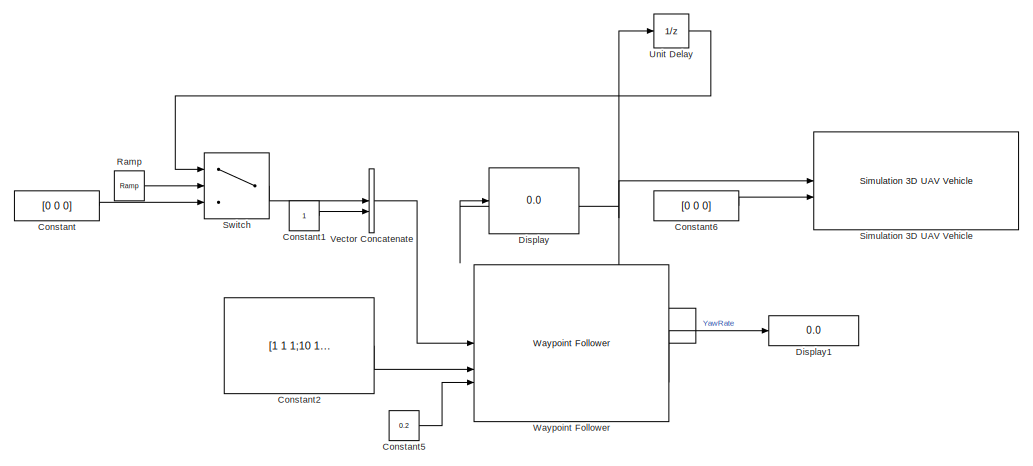
[diagram: root canvas - part 1/2, left side, full height]
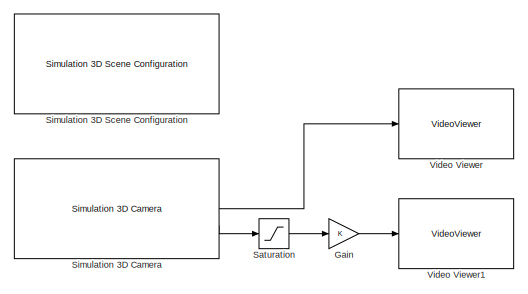
[diagram: root canvas - part 2/2, middle right region]
MODEL slx_5e219d23f34f
KIND model
CONFIG AbsTol = auto
CONFIG EnableMultiTasking = off
CONFIG FixedStep = auto
CONFIG MaxStep = auto
CONFIG MinStep = auto
CONFIG RelTol = 1e-3
CONFIG SampleTimeConstraint = Unconstrained
CONFIG SolverName = VariableStepAuto
CONFIG StartTime = 0.0
CONFIG StopTime = 20.0
BLOCK [Constant] Constant
  Value = [0 0 0]
BLOCK [Constant] Constant1
BLOCK [Constant] Constant2
  Value = [1 1 1;10 10 0;0 10 10;20 20 20;50 50 50]
BLOCK [Constant] Constant5
  Value = 0.2
BLOCK [Constant] Constant6
  Value = [0 0 0]
BLOCK [Display] Display
  Decimation = 3
BLOCK [Display] Display1
  Decimation = 1
BLOCK [Gain] Gain
BLOCK [Reference] Ramp  REF=simulink/Sources/Ramp
  SourceBlock = simulink/Sources/Ramp
  SourceType = Ramp
BLOCK [Saturate] Saturation
BLOCK [Reference] Simulation 3D Camera  REF=sim3dcameralib/Simulation 3D Camera
  LibrarySourceBlock = uavsim3dlib/Simulation 3D Camera
  Priority = 1
  SourceBlock = sim3dcameralib/Simulation 3D Camera
  SourceType = Simulation 3D Camera
BLOCK [Reference] Simulation 3D Scene Configuration  REF=sim3dlib/Simulation 3D Scene Configuration
  LibrarySourceBlock = uavsim3dlib/Simulation 3D Scene Configuration
  Priority = 0
  SourceBlock = sim3dlib/Simulation 3D Scene Configuration
  SourceType = Simulation 3D Scene Configuration
BLOCK [Reference] Simulation 3D UAV Vehicle  REF=uavsim3dlib/Simulation 3D UAV Vehicle
  Priority = -1
  SourceBlock = uavsim3dlib/Simulation 3D UAV Vehicle
  SourceType = Simulation 3D UAV Vehicle
BLOCK [Switch] Switch
  Criteria = u2 > Threshold
  InputSameDT = off
  SaturateOnIntegerOverflow = off
  Threshold = 5
BLOCK [UnitDelay] Unit Delay
  HasFrameUpgradeWarning = on
  SampleTime = -1
BLOCK [Concatenate] Vector Concatenate
BLOCK [VideoViewer] Video Viewer
  FigPos = [751 690.666666666667 418 304]
  ScopeSpecificationString = vipscopes.VideoViewerScopeCfg('CurrentConfiguration', extmgr.ConfigurationSet(extmgr.Configuration('Core','General UI',true),extmgr.Configuration('Core','Source UI',true),extmgr.Configuration('Sources','WiredSimulink',true),extmgr.Configuration('Visuals','Video',true),extmgr.Configuration('Tools','Image Navigation Tools',true),extmgr.Configuration('Tools','Image Tool',true),extmgr.Configuration('T...<+75ch>
BLOCK [VideoViewer] Video Viewer1
  FigPos = [751 690.666666666667 418 304]
  ScopeSpecificationString = vipscopes.VideoViewerScopeCfg('CurrentConfiguration', extmgr.ConfigurationSet(extmgr.Configuration('Core','General UI',true),extmgr.Configuration('Core','Source UI',true),extmgr.Configuration('Sources','WiredSimulink',true),extmgr.Configuration('Visuals','Video',true),extmgr.Configuration('Tools','Image Navigation Tools',true),extmgr.Configuration('Tools','Image Tool',true),extmgr.Configuration('T...<+75ch>
BLOCK [Reference] Waypoint Follower  REF=uavalgslib/Waypoint Follower
  SourceBlock = uavalgslib/Waypoint Follower
  SourceType = uav.sluav.internal.system.WaypointFollower
LINE Constant1:1 -> Vector Concatenate:2
LINE Constant2:1 -> Waypoint Follower:2
LINE Constant5:1 -> Waypoint Follower:3
LINE Constant6:1 -> Simulation 3D UAV Vehicle:2
LINE Constant:1 -> Switch:3
LINE Gain:1 -> Video Viewer1:1
LINE Ramp:1 -> Switch:2
LINE Saturation:1 -> Gain:1
LINE Simulation 3D Camera:1 -> Video Viewer:1
LINE Simulation 3D Camera:2 -> Saturation:1
LINE Switch:1 -> Vector Concatenate:1
LINE Unit Delay:1 -> Switch:1
LINE Vector Concatenate:1 -> Waypoint Follower:1
NET Waypoint Follower:1 -> Display:1, Simulation 3D UAV Vehicle:1, Unit Delay:1
LINE Waypoint Follower:3 -> Display1:1
note: NET lines group one-source signal fan-out (src -> all destinations, sorted); 1:1 wires keep LINE
